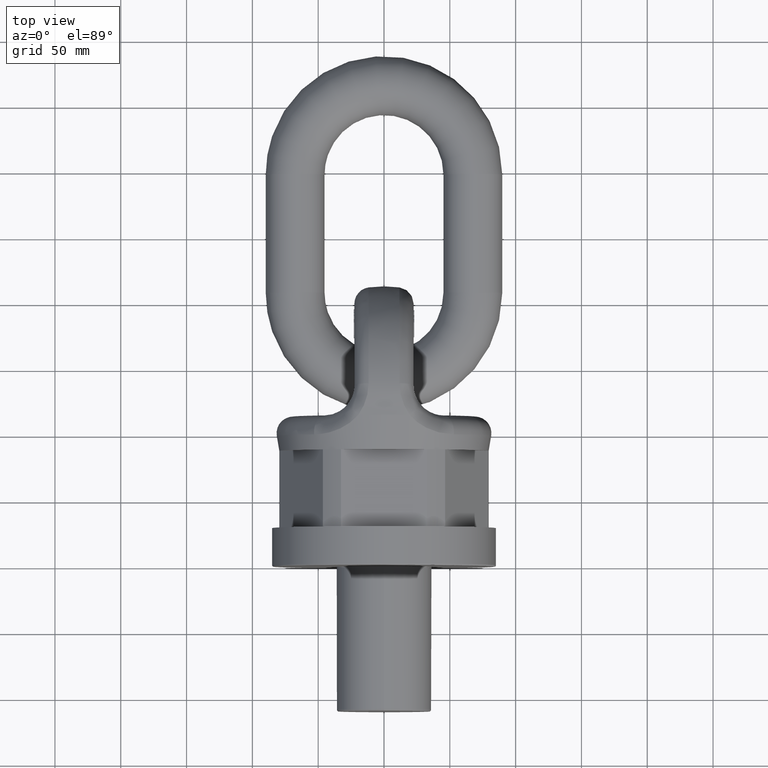
[diagram: clean part render]
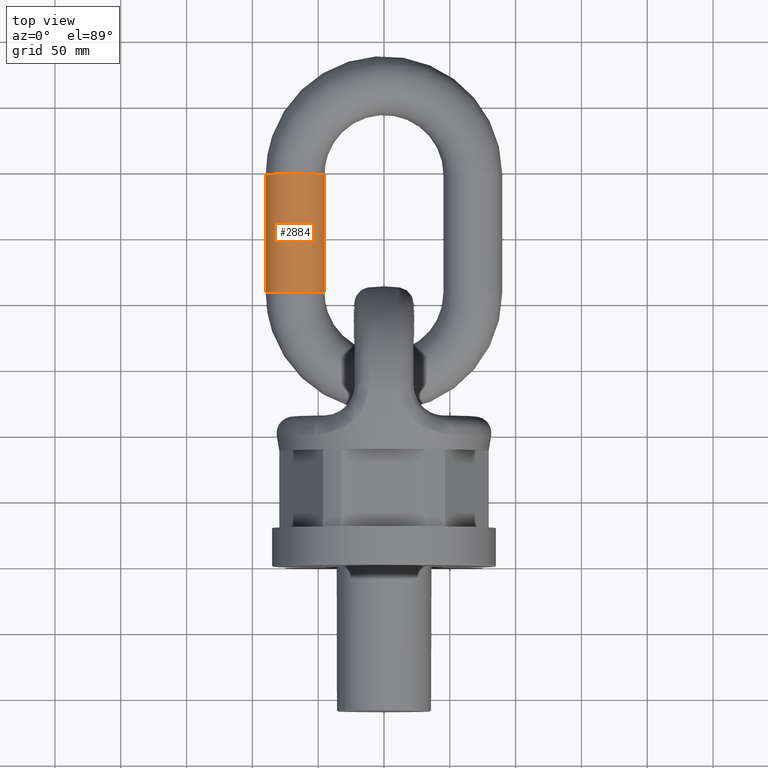
[diagram: same view with one face highlighted and labeled with its STEP entity id]
A machine part, top view. The second image highlights one B-rep face of the part: STEP entity #2884.
In plain terms, the highlighted cylindrical surface (bore or boss wall) has radius 22.5 mm, axis along (0, 1, 0).
Its self-contained STEP definition (entity closure, byte-faithful):
#2039=CYLINDRICAL_SURFACE('',#5803,22.5);
#2884=ADVANCED_FACE('',(#3057,#3058),#2039,.T.);
#3057=FACE_BOUND('',#3343,.T.);
#3058=FACE_BOUND('',#3344,.T.);
#3343=EDGE_LOOP('',(#4535));
#3344=EDGE_LOOP('',(#4536));
#4535=ORIENTED_EDGE('',*,*,#5533,.T.);
#4536=ORIENTED_EDGE('',*,*,#5534,.F.);
#4937=VERTEX_POINT('',#9874);
#4938=VERTEX_POINT('',#9876);
#5533=EDGE_CURVE('',#4937,#4937,#5599,.T.);
#5534=EDGE_CURVE('',#4938,#4938,#5600,.T.);
#5599=CIRCLE('',#5801,22.5);
#5600=CIRCLE('',#5802,22.5);
#5801=AXIS2_PLACEMENT_3D('',#9873,#6553,#6554);
#5802=AXIS2_PLACEMENT_3D('',#9875,#6555,#6556);
#5803=AXIS2_PLACEMENT_3D('',#9877,#6557,#6558);
#6553=DIRECTION('',(-1.01064309961486E-15,1.,0.));
#6554=DIRECTION('',(0.,0.,-1.));
#6555=DIRECTION('',(-1.01064309961486E-15,1.,0.));
#6556=DIRECTION('',(0.,0.,-1.));
#6557=DIRECTION('',(3.15796771448933E-16,1.,0.));
#6558=DIRECTION('',(-1.,0.,0.));
#9873=CARTESIAN_POINT('',(-67.5,208.,0.));
#9874=CARTESIAN_POINT('',(-67.5,208.,-22.5));
#9875=CARTESIAN_POINT('',(-67.4999999999999,298.,0.));
#9876=CARTESIAN_POINT('',(-67.4999999999999,298.,-22.5));
#9877=CARTESIAN_POINT('',(-67.5,208.,0.));